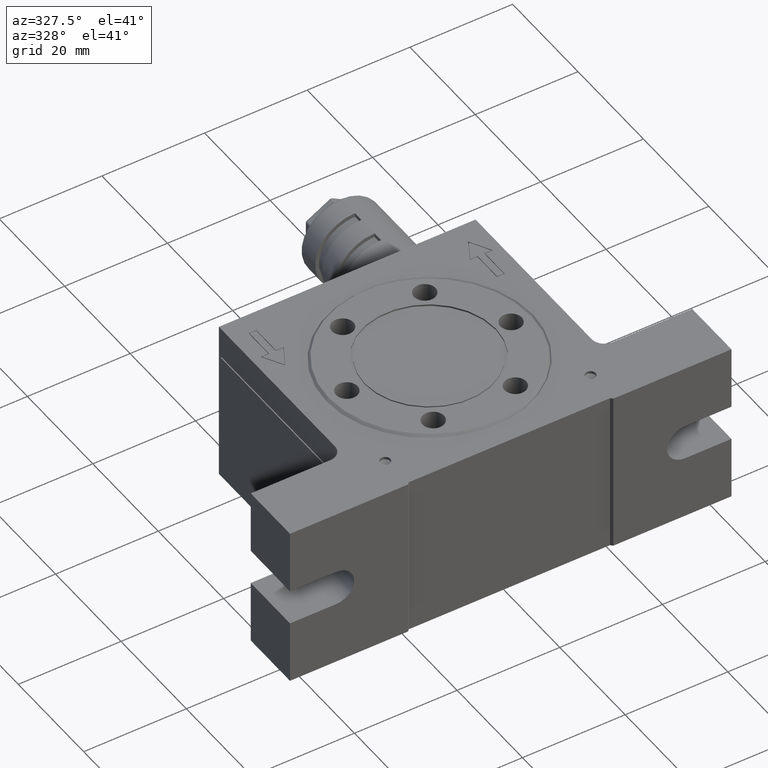
[diagram: clean part render]
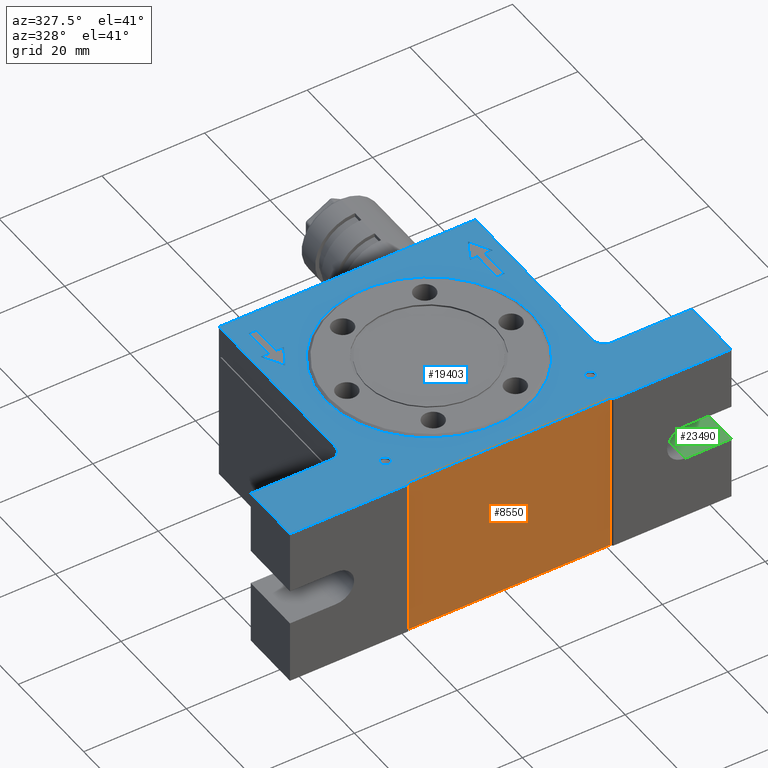
[diagram: same view with three faces highlighted in distinct colors, each labeled with its STEP entity id]
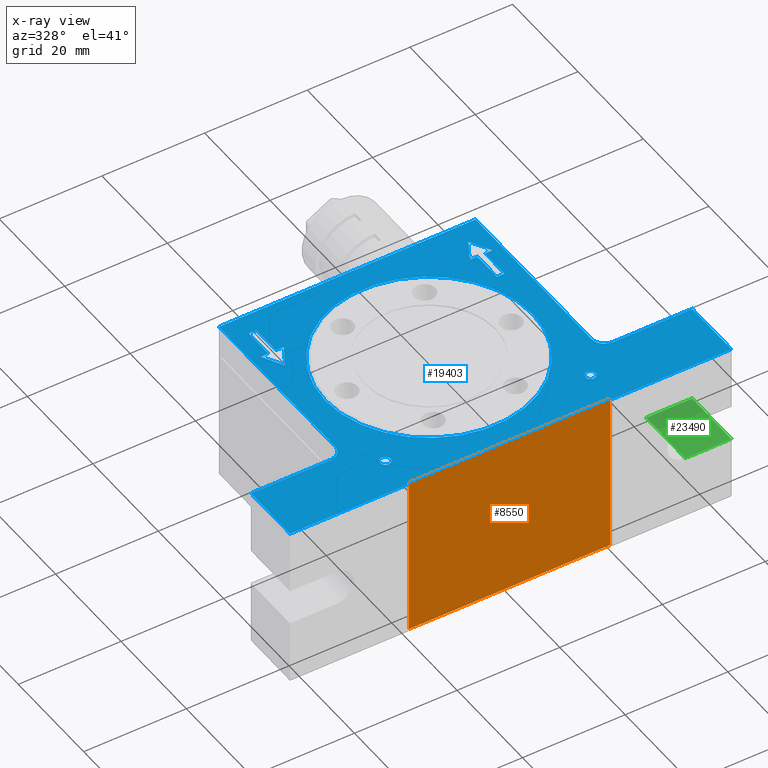
[diagram: x-ray of the same camera — body ghosted, the three highlighted faces saturated]
A machine part, auxiliary view with three faces highlighted in distinct colors.
The next image is the same camera in x-ray (body ghosted, the three faces saturated) — at least one of them is partly hidden behind the body in this view.
Their STEP definitions:

[orange] entity #8550 — the highlighted planar face has unit normal (-0, 1, 0).
#545 = DIRECTION ( 'NONE',  ( -1.000000000000000000, -8.673617379884035500E-017, 0.0000000000000000000 ) ) ;
#841 = LINE ( 'NONE', #10429, #13052 ) ;
#1231 = CARTESIAN_POINT ( 'NONE',  ( -19.99999999999998200, -24.60000000000000100, -16.00000000000000000 ) ) ;
#2549 = EDGE_CURVE ( 'NONE', #21098, #25419, #24283, .T. ) ;
#2736 = ORIENTED_EDGE ( 'NONE', *, *, #19955, .F. ) ;
#2906 = LINE ( 'NONE', #1231, #6371 ) ;
#3129 = DIRECTION ( 'NONE',  ( 0.0000000000000000000, 0.0000000000000000000, -1.000000000000000000 ) ) ;
#3889 = EDGE_LOOP ( 'NONE', ( #2736, #18816, #10448, #10238 ) ) ;
#6371 = VECTOR ( 'NONE', #13377, 1000.000000000000000 ) ;
#6503 = VERTEX_POINT ( 'NONE', #14291 ) ;
#6505 = PLANE ( 'NONE',  #21168 ) ;
#8550 = ADVANCED_FACE ( 'NONE', ( #9614 ), #6505, .F. ) ;
#8590 = EDGE_CURVE ( 'NONE', #6503, #21098, #841, .T. ) ;
#9108 = VERTEX_POINT ( 'NONE', #18602 ) ;
#9525 = CARTESIAN_POINT ( 'NONE',  ( -19.99999999999998200, -24.60000000000000100, 16.00000000000000000 ) ) ;
#9614 = FACE_OUTER_BOUND ( 'NONE', #3889, .T. ) ;
#10193 = VECTOR ( 'NONE', #23522, 1000.000000000000000 ) ;
#10238 = ORIENTED_EDGE ( 'NONE', *, *, #20439, .T. ) ;
#10429 = CARTESIAN_POINT ( 'NONE',  ( 19.60000000000000500, -24.59999999999999800, 16.00000000000000000 ) ) ;
#10448 = ORIENTED_EDGE ( 'NONE', *, *, #2549, .T. ) ;
#11089 = CARTESIAN_POINT ( 'NONE',  ( -19.59999999999998700, -24.60000000000000100, -16.00000000000000000 ) ) ;
#12367 = DIRECTION ( 'NONE',  ( 0.0000000000000000000, 0.0000000000000000000, 1.000000000000000000 ) ) ;
#12890 = LINE ( 'NONE', #11089, #17564 ) ;
#13052 = VECTOR ( 'NONE', #12367, 1000.000000000000000 ) ;
#13377 = DIRECTION ( 'NONE',  ( -1.000000000000000000, -8.673617379884035500E-017, -0.0000000000000000000 ) ) ;
#14229 = DIRECTION ( 'NONE',  ( -8.673617379884035500E-017, 1.000000000000000000, 0.0000000000000000000 ) ) ;
#14291 = CARTESIAN_POINT ( 'NONE',  ( 19.60000000000000500, -24.59999999999999800, -16.00000000000000000 ) ) ;
#17564 = VECTOR ( 'NONE', #3129, 1000.000000000000000 ) ;
#18475 = CARTESIAN_POINT ( 'NONE',  ( -19.99999999999998200, -24.60000000000000100, -16.00000000000000000 ) ) ;
#18602 = CARTESIAN_POINT ( 'NONE',  ( -19.59999999999998700, -24.60000000000000100, -16.00000000000000000 ) ) ;
#18816 = ORIENTED_EDGE ( 'NONE', *, *, #8590, .T. ) ;
#19955 = EDGE_CURVE ( 'NONE', #6503, #9108, #2906, .T. ) ;
#20439 = EDGE_CURVE ( 'NONE', #25419, #9108, #12890, .T. ) ;
#21098 = VERTEX_POINT ( 'NONE', #21456 ) ;
#21168 = AXIS2_PLACEMENT_3D ( 'NONE', #18475, #14229, #545 ) ;
#21456 = CARTESIAN_POINT ( 'NONE',  ( 19.60000000000000500, -24.59999999999999800, 16.00000000000000000 ) ) ;
#23522 = DIRECTION ( 'NONE',  ( -1.000000000000000000, -8.673617379884035500E-017, -0.0000000000000000000 ) ) ;
#23801 = CARTESIAN_POINT ( 'NONE',  ( -19.59999999999998700, -24.60000000000000100, 16.00000000000000000 ) ) ;
#24283 = LINE ( 'NONE', #9525, #10193 ) ;
#25419 = VERTEX_POINT ( 'NONE', #23801 ) ;

[blue] entity #19403 — the highlighted planar face has unit normal (0, 0, -1).
#56 = EDGE_CURVE ( 'NONE', #15762, #9600, #2592, .T. ) ;
#63 = VERTEX_POINT ( 'NONE', #6309 ) ;
#68 = VECTOR ( 'NONE', #10627, 1000.000000000000000 ) ;
#97 = CARTESIAN_POINT ( 'NONE',  ( -20.24999999999998200, 15.00000000000000500, 16.00000000000000000 ) ) ;
#98 = CARTESIAN_POINT ( 'NONE',  ( -19.99999999999998200, -25.00000000000000000, 16.00000000000000000 ) ) ;
#110 = ORIENTED_EDGE ( 'NONE', *, *, #7094, .F. ) ;
#132 = DIRECTION ( 'NONE',  ( -5.782411586589356700E-016, -1.000000000000000000, 0.0000000000000000000 ) ) ;
#145 = FACE_BOUND ( 'NONE', #3710, .T. ) ;
#189 = EDGE_CURVE ( 'NONE', #25401, #14477, #7932, .T. ) ;
#199 = VECTOR ( 'NONE', #15430, 1000.000000000000000 ) ;
#201 = CARTESIAN_POINT ( 'NONE',  ( -20.99999999999998600, 11.00000000000000700, 16.00000000000000000 ) ) ;
#412 = EDGE_CURVE ( 'NONE', #17796, #25401, #6015, .T. ) ;
#508 = ORIENTED_EDGE ( 'NONE', *, *, #14870, .F. ) ;
#771 = CARTESIAN_POINT ( 'NONE',  ( 20.00000000000001800, -24.99999999999999600, 16.00000000000000000 ) ) ;
#806 = ORIENTED_EDGE ( 'NONE', *, *, #22790, .F. ) ;
#830 = VECTOR ( 'NONE', #24873, 1000.000000000000000 ) ;
#875 = EDGE_CURVE ( 'NONE', #2945, #3043, #2834, .T. ) ;
#896 = EDGE_CURVE ( 'NONE', #13149, #13940, #23517, .T. ) ;
#910 = EDGE_LOOP ( 'NONE', ( #110, #17395 ) ) ;
#946 = VERTEX_POINT ( 'NONE', #98 ) ;
#1190 = VERTEX_POINT ( 'NONE', #5411 ) ;
#1242 = VERTEX_POINT ( 'NONE', #23428 ) ;
#1325 = VECTOR ( 'NONE', #13461, 1000.000000000000000 ) ;
#1435 = VECTOR ( 'NONE', #132, 1000.000000000000000 ) ;
#1453 = CARTESIAN_POINT ( 'NONE',  ( -21.74999999999999300, 15.00000000000000500, 16.00000000000000000 ) ) ;
#1824 = DIRECTION ( 'NONE',  ( 0.0000000000000000000, -1.000000000000000000, 0.0000000000000000000 ) ) ;
#1930 = EDGE_CURVE ( 'NONE', #18564, #14482, #10908, .T. ) ;
#1996 = CARTESIAN_POINT ( 'NONE',  ( 20.25000000000001400, 16.99999999999999600, 16.00000000000000000 ) ) ;
#2020 = VECTOR ( 'NONE', #18579, 1000.000000000000000 ) ;
#2116 = DIRECTION ( 'NONE',  ( -1.000000000000000000, 0.0000000000000000000, 0.0000000000000000000 ) ) ;
#2276 = DIRECTION ( 'NONE',  ( 0.4902612396325589100, 0.8715755371245493800, 0.0000000000000000000 ) ) ;
#2367 = CARTESIAN_POINT ( 'NONE',  ( 21.75000000000001800, 10.99999999999999800, 16.00000000000000000 ) ) ;
#2536 = VECTOR ( 'NONE', #20684, 1000.000000000000000 ) ;
#2549 = EDGE_CURVE ( 'NONE', #21098, #25419, #24283, .T. ) ;
#2588 = ORIENTED_EDGE ( 'NONE', *, *, #20489, .F. ) ;
#2592 = LINE ( 'NONE', #13949, #22948 ) ;
#2623 = CARTESIAN_POINT ( 'NONE',  ( -27.49999999999998600, -13.00000000000000500, 16.00000000000000000 ) ) ;
#2682 = VERTEX_POINT ( 'NONE', #24205 ) ;
#2830 = CIRCLE ( 'NONE', #21472, 20.19000000000000100 ) ;
#2834 = LINE ( 'NONE', #4735, #2536 ) ;
#2862 = DIRECTION ( 'NONE',  ( -1.000000000000000000, 0.0000000000000000000, 0.0000000000000000000 ) ) ;
#2928 = CIRCLE ( 'NONE', #21824, 2.499999999999998700 ) ;
#2937 = DIRECTION ( 'NONE',  ( -1.000000000000000000, 0.0000000000000000000, 0.0000000000000000000 ) ) ;
#2945 = VERTEX_POINT ( 'NONE', #7633 ) ;
#2978 = CARTESIAN_POINT ( 'NONE',  ( -23.24999999999998600, 15.00000000000000500, 16.00000000000000000 ) ) ;
#3018 = CARTESIAN_POINT ( 'NONE',  ( -20.99999999999999300, -18.00000000000000400, 16.00000000000000000 ) ) ;
#3043 = VERTEX_POINT ( 'NONE', #18635 ) ;
#3139 = ORIENTED_EDGE ( 'NONE', *, *, #21858, .T. ) ;
#3235 = VECTOR ( 'NONE', #15649, 1000.000000000000000 ) ;
#3255 = CARTESIAN_POINT ( 'NONE',  ( -23.24999999999998600, 15.00000000000000500, 16.00000000000000000 ) ) ;
#3262 = VECTOR ( 'NONE', #16569, 1000.000000000000000 ) ;
#3295 = ORIENTED_EDGE ( 'NONE', *, *, #6910, .T. ) ;
#3460 = EDGE_LOOP ( 'NONE', ( #13782, #15294, #23070, #508, #16185, #20585, #15202 ) ) ;
#3470 = ORIENTED_EDGE ( 'NONE', *, *, #896, .F. ) ;
#3569 = DIRECTION ( 'NONE',  ( -0.0000000000000000000, -0.0000000000000000000, 1.000000000000000000 ) ) ;
#3686 = VECTOR ( 'NONE', #25464, 1000.000000000000000 ) ;
#3710 = EDGE_LOOP ( 'NONE', ( #12734, #806 ) ) ;
#4130 = ORIENTED_EDGE ( 'NONE', *, *, #14035, .T. ) ;
#4214 = FACE_OUTER_BOUND ( 'NONE', #10989, .T. ) ;
#4246 = ORIENTED_EDGE ( 'NONE', *, *, #2549, .F. ) ;
#4275 = ORIENTED_EDGE ( 'NONE', *, *, #19640, .F. ) ;
#4647 = DIRECTION ( 'NONE',  ( -0.4902612396325587400, -0.8715755371245494900, 0.0000000000000000000 ) ) ;
#4705 = LINE ( 'NONE', #13921, #19433 ) ;
#4735 = CARTESIAN_POINT ( 'NONE',  ( -42.99999999999998600, 25.00000000000000000, 16.00000000000000000 ) ) ;
#4743 = CARTESIAN_POINT ( 'NONE',  ( -19.99999999999999600, -18.00000000000000400, 16.00000000000000000 ) ) ;
#4825 = CARTESIAN_POINT ( 'NONE',  ( 21.00000000000001400, 20.99999999999999600, 16.00000000000000000 ) ) ;
#4936 = EDGE_LOOP ( 'NONE', ( #21880, #10880, #3470, #24516, #17919, #15688, #20775 ) ) ;
#4960 = ORIENTED_EDGE ( 'NONE', *, *, #1930, .F. ) ;
#4973 = VERTEX_POINT ( 'NONE', #3018 ) ;
#5132 = VECTOR ( 'NONE', #20127, 1000.000000000000000 ) ;
#5261 = EDGE_CURVE ( 'NONE', #946, #25419, #21870, .T. ) ;
#5350 = CIRCLE ( 'NONE', #11924, 2.499999999999998700 ) ;
#5369 = LINE ( 'NONE', #6800, #23534 ) ;
#5372 = DIRECTION ( 'NONE',  ( 1.000000000000000000, 0.0000000000000000000, 0.0000000000000000000 ) ) ;
#5411 = CARTESIAN_POINT ( 'NONE',  ( 20.25000000000001400, 16.99999999999999600, 16.00000000000000000 ) ) ;
#5465 = FACE_BOUND ( 'NONE', #3460, .T. ) ;
#5515 = LINE ( 'NONE', #13671, #199 ) ;
#5646 = ORIENTED_EDGE ( 'NONE', *, *, #5261, .T. ) ;
#5677 = EDGE_CURVE ( 'NONE', #25134, #946, #23095, .T. ) ;
#5678 = DIRECTION ( 'NONE',  ( 1.000000000000000000, 0.0000000000000000000, 0.0000000000000000000 ) ) ;
#5972 = CIRCLE ( 'NONE', #12592, 0.9999999999999974500 ) ;
#6015 = LINE ( 'NONE', #14517, #68 ) ;
#6214 = CARTESIAN_POINT ( 'NONE',  ( 43.00000000000000700, -13.00000000000000500, 16.00000000000000000 ) ) ;
#6301 = CARTESIAN_POINT ( 'NONE',  ( 21.00000000000000700, 20.99999999999999600, 16.00000000000000000 ) ) ;
#6309 = CARTESIAN_POINT ( 'NONE',  ( -20.19000000000000100, 2.472561887478506400E-015, 16.00000000000000000 ) ) ;
#6461 = CARTESIAN_POINT ( 'NONE',  ( 21.75000000000001400, 16.99999999999999600, 16.00000000000000000 ) ) ;
#6776 = ORIENTED_EDGE ( 'NONE', *, *, #875, .T. ) ;
#6800 = CARTESIAN_POINT ( 'NONE',  ( -24.99999999999998600, 25.00000000000000000, 16.00000000000000000 ) ) ;
#6818 = LINE ( 'NONE', #2978, #3686 ) ;
#6840 = DIRECTION ( 'NONE',  ( 1.000000000000000000, -0.0000000000000000000, -0.0000000000000000000 ) ) ;
#6910 = EDGE_CURVE ( 'NONE', #19418, #2682, #4705, .T. ) ;
#7083 = CARTESIAN_POINT ( 'NONE',  ( -42.99999999999998600, -25.00000000000000000, 16.00000000000000000 ) ) ;
#7094 = EDGE_CURVE ( 'NONE', #9505, #14316, #5972, .T. ) ;
#7118 = VECTOR ( 'NONE', #20288, 1000.000000000000000 ) ;
#7282 = VECTOR ( 'NONE', #8572, 1000.000000000000000 ) ;
#7380 = LINE ( 'NONE', #8106, #1435 ) ;
#7633 = CARTESIAN_POINT ( 'NONE',  ( 25.00000000000001400, 24.99999999999999600, 16.00000000000000000 ) ) ;
#7906 = ORIENTED_EDGE ( 'NONE', *, *, #9874, .T. ) ;
#7932 = LINE ( 'NONE', #22458, #7282 ) ;
#8106 = CARTESIAN_POINT ( 'NONE',  ( -21.74999999999998900, 21.00000000000000400, 16.00000000000000000 ) ) ;
#8273 = AXIS2_PLACEMENT_3D ( 'NONE', #25438, #3569, #9519 ) ;
#8359 = CARTESIAN_POINT ( 'NONE',  ( -36.50000000000107300, 31.49999999999913300, 16.00000000000000000 ) ) ;
#8371 = LINE ( 'NONE', #24185, #14877 ) ;
#8534 = EDGE_CURVE ( 'NONE', #14892, #11742, #8371, .T. ) ;
#8572 = DIRECTION ( 'NONE',  ( -1.000000000000000000, -0.0000000000000000000, 0.0000000000000000000 ) ) ;
#8634 = DIRECTION ( 'NONE',  ( 1.000000000000000000, 0.0000000000000000000, 0.0000000000000000000 ) ) ;
#8664 = PLANE ( 'NONE',  #14426 ) ;
#8707 = CARTESIAN_POINT ( 'NONE',  ( -24.99999999999998600, -10.50000000000000200, 16.00000000000000000 ) ) ;
#8845 = DIRECTION ( 'NONE',  ( 0.0000000000000000000, 0.0000000000000000000, -1.000000000000000000 ) ) ;
#8983 = ORIENTED_EDGE ( 'NONE', *, *, #18815, .T. ) ;
#9052 = LINE ( 'NONE', #24947, #24388 ) ;
#9505 = VERTEX_POINT ( 'NONE', #10286 ) ;
#9519 = DIRECTION ( 'NONE',  ( 1.000000000000000000, 0.0000000000000000000, 0.0000000000000000000 ) ) ;
#9525 = CARTESIAN_POINT ( 'NONE',  ( -19.99999999999998200, -24.60000000000000100, 16.00000000000000000 ) ) ;
#9554 = CIRCLE ( 'NONE', #8273, 0.9999999999999974500 ) ;
#9600 = VERTEX_POINT ( 'NONE', #24543 ) ;
#9874 = EDGE_CURVE ( 'NONE', #16156, #11742, #2928, .T. ) ;
#9940 = CARTESIAN_POINT ( 'NONE',  ( -42.99999999999998600, -13.00000000000000500, 16.00000000000000000 ) ) ;
#10049 = CARTESIAN_POINT ( 'NONE',  ( -20.24999999999998600, 21.00000000000000400, 16.00000000000000000 ) ) ;
#10193 = VECTOR ( 'NONE', #23522, 1000.000000000000000 ) ;
#10286 = CARTESIAN_POINT ( 'NONE',  ( 21.00000000000000000, -18.00000000000000000, 16.00000000000000000 ) ) ;
#10357 = EDGE_CURVE ( 'NONE', #16685, #15762, #12955, .T. ) ;
#10464 = VECTOR ( 'NONE', #2276, 1000.000000000000000 ) ;
#10546 = CARTESIAN_POINT ( 'NONE',  ( 25.00000000000001400, 24.99999999999999600, 16.00000000000000000 ) ) ;
#10627 = DIRECTION ( 'NONE',  ( -5.782411586589356700E-016, 1.000000000000000000, 0.0000000000000000000 ) ) ;
#10691 = VECTOR ( 'NONE', #1824, 1000.000000000000000 ) ;
#10866 = CARTESIAN_POINT ( 'NONE',  ( 43.00000000000000700, -13.00000000000000500, 16.00000000000000000 ) ) ;
#10879 = DIRECTION ( 'NONE',  ( -0.0000000000000000000, -0.0000000000000000000, 1.000000000000000000 ) ) ;
#10880 = ORIENTED_EDGE ( 'NONE', *, *, #18341, .F. ) ;
#10899 = LINE ( 'NONE', #18589, #14920 ) ;
#10908 = LINE ( 'NONE', #10866, #21543 ) ;
#10989 = EDGE_LOOP ( 'NONE', ( #18755, #5646, #4246, #8983, #3295, #4130, #4960, #14054, #4275, #6776, #2588, #7906, #18650, #22608 ) ) ;
#11015 = DIRECTION ( 'NONE',  ( 0.0000000000000000000, 0.0000000000000000000, -1.000000000000000000 ) ) ;
#11202 = EDGE_CURVE ( 'NONE', #9600, #13149, #14507, .T. ) ;
#11631 = EDGE_CURVE ( 'NONE', #20625, #18998, #23285, .T. ) ;
#11727 = LINE ( 'NONE', #17751, #10464 ) ;
#11742 = VERTEX_POINT ( 'NONE', #2623 ) ;
#11753 = CARTESIAN_POINT ( 'NONE',  ( -27.49999999999998600, -10.50000000000000200, 16.00000000000000000 ) ) ;
#11924 = AXIS2_PLACEMENT_3D ( 'NONE', #22968, #20707, #2937 ) ;
#12241 = CARTESIAN_POINT ( 'NONE',  ( 20.25000000000001400, 10.99999999999999800, 16.00000000000000000 ) ) ;
#12592 = AXIS2_PLACEMENT_3D ( 'NONE', #19265, #13569, #5372 ) ;
#12734 = ORIENTED_EDGE ( 'NONE', *, *, #23008, .F. ) ;
#12735 = LINE ( 'NONE', #8359, #830 ) ;
#12765 = CARTESIAN_POINT ( 'NONE',  ( -42.99999999999998600, 25.00000000000000000, 16.00000000000000000 ) ) ;
#12902 = DIRECTION ( 'NONE',  ( 1.000000000000000000, 0.0000000000000000000, 0.0000000000000000000 ) ) ;
#12923 = AXIS2_PLACEMENT_3D ( 'NONE', #4743, #10879, #12902 ) ;
#12954 = EDGE_CURVE ( 'NONE', #1190, #14524, #24754, .T. ) ;
#12955 = LINE ( 'NONE', #13620, #3235 ) ;
#13024 = DIRECTION ( 'NONE',  ( -0.0000000000000000000, 1.000000000000000000, -0.0000000000000000000 ) ) ;
#13149 = VERTEX_POINT ( 'NONE', #6301 ) ;
#13461 = DIRECTION ( 'NONE',  ( -0.0000000000000000000, -1.000000000000000000, -0.0000000000000000000 ) ) ;
#13569 = DIRECTION ( 'NONE',  ( -0.0000000000000000000, -0.0000000000000000000, 1.000000000000000000 ) ) ;
#13620 = CARTESIAN_POINT ( 'NONE',  ( 21.75000000000001800, 10.99999999999999800, 16.00000000000000000 ) ) ;
#13671 = CARTESIAN_POINT ( 'NONE',  ( 20.25000000000001400, 10.99999999999999800, 16.00000000000000000 ) ) ;
#13683 = VERTEX_POINT ( 'NONE', #20588 ) ;
#13782 = ORIENTED_EDGE ( 'NONE', *, *, #19235, .F. ) ;
#13808 = DIRECTION ( 'NONE',  ( -0.0000000000000000000, -0.0000000000000000000, 1.000000000000000000 ) ) ;
#13921 = CARTESIAN_POINT ( 'NONE',  ( -42.99999999999998600, -25.00000000000000000, 16.00000000000000000 ) ) ;
#13940 = VERTEX_POINT ( 'NONE', #22156 ) ;
#13949 = CARTESIAN_POINT ( 'NONE',  ( 21.75000000000001400, 16.99999999999999600, 16.00000000000000000 ) ) ;
#14035 = EDGE_CURVE ( 'NONE', #2682, #14482, #9052, .T. ) ;
#14054 = ORIENTED_EDGE ( 'NONE', *, *, #17212, .T. ) ;
#14056 = DIRECTION ( 'NONE',  ( 0.0000000000000000000, 0.0000000000000000000, -1.000000000000000000 ) ) ;
#14059 = CARTESIAN_POINT ( 'NONE',  ( -21.74999999999999300, 15.00000000000000500, 16.00000000000000000 ) ) ;
#14183 = CARTESIAN_POINT ( 'NONE',  ( -6.499999999999984900, -11.49999999999999600, 16.00000000000000000 ) ) ;
#14206 = EDGE_CURVE ( 'NONE', #18998, #24587, #6818, .T. ) ;
#14218 = CARTESIAN_POINT ( 'NONE',  ( -19.00000000000000000, -18.00000000000000400, 16.00000000000000000 ) ) ;
#14316 = VERTEX_POINT ( 'NONE', #23354 ) ;
#14367 = AXIS2_PLACEMENT_3D ( 'NONE', #18784, #11015, #2862 ) ;
#14381 = CARTESIAN_POINT ( 'NONE',  ( -42.99999999999998600, -25.00000000000000000, 16.00000000000000000 ) ) ;
#14426 = AXIS2_PLACEMENT_3D ( 'NONE', #12765, #8845, #14733 ) ;
#14477 = VERTEX_POINT ( 'NONE', #24407 ) ;
#14482 = VERTEX_POINT ( 'NONE', #6214 ) ;
#14507 = LINE ( 'NONE', #16727, #2020 ) ;
#14517 = CARTESIAN_POINT ( 'NONE',  ( -20.24999999999998600, 21.00000000000000400, 16.00000000000000000 ) ) ;
#14524 = VERTEX_POINT ( 'NONE', #12241 ) ;
#14648 = CARTESIAN_POINT ( 'NONE',  ( 25.00000000000001400, -10.50000000000000500, 16.00000000000000000 ) ) ;
#14733 = DIRECTION ( 'NONE',  ( -1.000000000000000000, 0.0000000000000000000, -0.0000000000000000000 ) ) ;
#14870 = EDGE_CURVE ( 'NONE', #14477, #20625, #7380, .T. ) ;
#14877 = VECTOR ( 'NONE', #20232, 1000.000000000000000 ) ;
#14892 = VERTEX_POINT ( 'NONE', #9940 ) ;
#14920 = VECTOR ( 'NONE', #8634, 1000.000000000000000 ) ;
#15202 = ORIENTED_EDGE ( 'NONE', *, *, #17527, .F. ) ;
#15225 = CARTESIAN_POINT ( 'NONE',  ( 27.50000000000001400, -13.00000000000000500, 16.00000000000000000 ) ) ;
#15229 = VERTEX_POINT ( 'NONE', #14648 ) ;
#15294 = ORIENTED_EDGE ( 'NONE', *, *, #14206, .F. ) ;
#15430 = DIRECTION ( 'NONE',  ( 1.000000000000000000, 0.0000000000000000000, 0.0000000000000000000 ) ) ;
#15464 = FACE_BOUND ( 'NONE', #910, .T. ) ;
#15490 = CARTESIAN_POINT ( 'NONE',  ( -19.99999999999999600, -18.00000000000000400, 16.00000000000000000 ) ) ;
#15649 = DIRECTION ( 'NONE',  ( -5.782411586589356700E-016, 1.000000000000000000, 0.0000000000000000000 ) ) ;
#15688 = ORIENTED_EDGE ( 'NONE', *, *, #10357, .F. ) ;
#15760 = DIRECTION ( 'NONE',  ( 1.000000000000000000, 0.0000000000000000000, 0.0000000000000000000 ) ) ;
#15762 = VERTEX_POINT ( 'NONE', #6461 ) ;
#15778 = DIRECTION ( 'NONE',  ( -1.000000000000000000, 0.0000000000000000000, 0.0000000000000000000 ) ) ;
#15879 = CIRCLE ( 'NONE', #14367, 20.19000000000000100 ) ;
#16153 = CIRCLE ( 'NONE', #17430, 0.9999999999999974500 ) ;
#16156 = VERTEX_POINT ( 'NONE', #8707 ) ;
#16185 = ORIENTED_EDGE ( 'NONE', *, *, #189, .F. ) ;
#16238 = DIRECTION ( 'NONE',  ( 0.7071067811865474600, 0.7071067811865474600, -0.0000000000000000000 ) ) ;
#16569 = DIRECTION ( 'NONE',  ( 0.0000000000000000000, -1.000000000000000000, 0.0000000000000000000 ) ) ;
#16685 = VERTEX_POINT ( 'NONE', #2367 ) ;
#16727 = CARTESIAN_POINT ( 'NONE',  ( 23.25000000000001400, 16.99999999999999600, 16.00000000000000000 ) ) ;
#17212 = EDGE_CURVE ( 'NONE', #18564, #15229, #5350, .T. ) ;
#17362 = FACE_BOUND ( 'NONE', #22354, .T. ) ;
#17395 = ORIENTED_EDGE ( 'NONE', *, *, #23816, .F. ) ;
#17430 = AXIS2_PLACEMENT_3D ( 'NONE', #15490, #13808, #15760 ) ;
#17481 = EDGE_CURVE ( 'NONE', #13683, #63, #2830, .T. ) ;
#17527 = EDGE_CURVE ( 'NONE', #1242, #17796, #24442, .T. ) ;
#17751 = CARTESIAN_POINT ( 'NONE',  ( -20.99999999999998600, 11.00000000000000700, 16.00000000000000000 ) ) ;
#17786 = CARTESIAN_POINT ( 'NONE',  ( 0.0000000000000000000, 0.0000000000000000000, 16.00000000000000000 ) ) ;
#17796 = VERTEX_POINT ( 'NONE', #97 ) ;
#17919 = ORIENTED_EDGE ( 'NONE', *, *, #56, .F. ) ;
#18181 = VECTOR ( 'NONE', #4647, 1000.000000000000000 ) ;
#18296 = ORIENTED_EDGE ( 'NONE', *, *, #17481, .T. ) ;
#18341 = EDGE_CURVE ( 'NONE', #13940, #1190, #10899, .T. ) ;
#18564 = VERTEX_POINT ( 'NONE', #15225 ) ;
#18579 = DIRECTION ( 'NONE',  ( -0.4902612396325587400, 0.8715755371245494900, 0.0000000000000000000 ) ) ;
#18589 = CARTESIAN_POINT ( 'NONE',  ( 18.75000000000001800, 16.99999999999999600, 16.00000000000000000 ) ) ;
#18635 = CARTESIAN_POINT ( 'NONE',  ( -24.99999999999998600, 25.00000000000000000, 16.00000000000000000 ) ) ;
#18650 = ORIENTED_EDGE ( 'NONE', *, *, #8534, .F. ) ;
#18755 = ORIENTED_EDGE ( 'NONE', *, *, #5677, .T. ) ;
#18784 = CARTESIAN_POINT ( 'NONE',  ( 0.0000000000000000000, 0.0000000000000000000, 16.00000000000000000 ) ) ;
#18815 = EDGE_CURVE ( 'NONE', #21098, #19418, #12735, .T. ) ;
#18887 = DIRECTION ( 'NONE',  ( 0.0000000000000000000, 1.000000000000000000, 0.0000000000000000000 ) ) ;
#18998 = VERTEX_POINT ( 'NONE', #3255 ) ;
#19094 = VECTOR ( 'NONE', #25601, 1000.000000000000000 ) ;
#19213 = LINE ( 'NONE', #10546, #3262 ) ;
#19235 = EDGE_CURVE ( 'NONE', #24587, #1242, #11727, .T. ) ;
#19265 = CARTESIAN_POINT ( 'NONE',  ( 20.00000000000000400, -18.00000000000000000, 16.00000000000000000 ) ) ;
#19403 = ADVANCED_FACE ( 'NONE', ( #17362, #21426, #5465, #145, #15464, #4214 ), #8664, .F. ) ;
#19418 = VERTEX_POINT ( 'NONE', #771 ) ;
#19433 = VECTOR ( 'NONE', #20076, 1000.000000000000000 ) ;
#19640 = EDGE_CURVE ( 'NONE', #2945, #15229, #19213, .T. ) ;
#19723 = CARTESIAN_POINT ( 'NONE',  ( -18.74999999999998900, 15.00000000000000500, 16.00000000000000000 ) ) ;
#19975 = VECTOR ( 'NONE', #16238, 1000.000000000000100 ) ;
#19978 = EDGE_CURVE ( 'NONE', #14892, #25134, #21060, .T. ) ;
#20076 = DIRECTION ( 'NONE',  ( 1.000000000000000000, 0.0000000000000000000, 0.0000000000000000000 ) ) ;
#20127 = DIRECTION ( 'NONE',  ( -1.000000000000000000, 0.0000000000000000000, 0.0000000000000000000 ) ) ;
#20232 = DIRECTION ( 'NONE',  ( 1.000000000000000000, 0.0000000000000000000, 0.0000000000000000000 ) ) ;
#20288 = DIRECTION ( 'NONE',  ( 1.000000000000000000, 0.0000000000000000000, 0.0000000000000000000 ) ) ;
#20489 = EDGE_CURVE ( 'NONE', #16156, #3043, #5369, .T. ) ;
#20585 = ORIENTED_EDGE ( 'NONE', *, *, #412, .F. ) ;
#20588 = CARTESIAN_POINT ( 'NONE',  ( 20.19000000000000100, 0.0000000000000000000, 16.00000000000000000 ) ) ;
#20625 = VERTEX_POINT ( 'NONE', #1453 ) ;
#20684 = DIRECTION ( 'NONE',  ( -1.000000000000000000, -0.0000000000000000000, -0.0000000000000000000 ) ) ;
#20707 = DIRECTION ( 'NONE',  ( 0.0000000000000000000, 0.0000000000000000000, -1.000000000000000000 ) ) ;
#20775 = ORIENTED_EDGE ( 'NONE', *, *, #22544, .F. ) ;
#21060 = LINE ( 'NONE', #7083, #1325 ) ;
#21098 = VERTEX_POINT ( 'NONE', #21456 ) ;
#21426 = FACE_BOUND ( 'NONE', #4936, .T. ) ;
#21456 = CARTESIAN_POINT ( 'NONE',  ( 19.60000000000000500, -24.59999999999999800, 16.00000000000000000 ) ) ;
#21472 = AXIS2_PLACEMENT_3D ( 'NONE', #17786, #21644, #15778 ) ;
#21543 = VECTOR ( 'NONE', #6840, 1000.000000000000000 ) ;
#21644 = DIRECTION ( 'NONE',  ( 0.0000000000000000000, 0.0000000000000000000, -1.000000000000000000 ) ) ;
#21824 = AXIS2_PLACEMENT_3D ( 'NONE', #11753, #14056, #2116 ) ;
#21858 = EDGE_CURVE ( 'NONE', #63, #13683, #15879, .T. ) ;
#21870 = LINE ( 'NONE', #14183, #19975 ) ;
#21880 = ORIENTED_EDGE ( 'NONE', *, *, #12954, .F. ) ;
#22139 = CIRCLE ( 'NONE', #12923, 0.9999999999999974500 ) ;
#22156 = CARTESIAN_POINT ( 'NONE',  ( 18.75000000000001800, 16.99999999999999600, 16.00000000000000000 ) ) ;
#22354 = EDGE_LOOP ( 'NONE', ( #18296, #3139 ) ) ;
#22458 = CARTESIAN_POINT ( 'NONE',  ( -21.74999999999998900, 21.00000000000000400, 16.00000000000000000 ) ) ;
#22544 = EDGE_CURVE ( 'NONE', #14524, #16685, #5515, .T. ) ;
#22608 = ORIENTED_EDGE ( 'NONE', *, *, #19978, .T. ) ;
#22790 = EDGE_CURVE ( 'NONE', #4973, #24984, #22139, .T. ) ;
#22948 = VECTOR ( 'NONE', #5678, 1000.000000000000000 ) ;
#22968 = CARTESIAN_POINT ( 'NONE',  ( 27.50000000000001400, -10.50000000000000400, 16.00000000000000000 ) ) ;
#23008 = EDGE_CURVE ( 'NONE', #24984, #4973, #16153, .T. ) ;
#23070 = ORIENTED_EDGE ( 'NONE', *, *, #11631, .F. ) ;
#23095 = LINE ( 'NONE', #14381, #7118 ) ;
#23285 = LINE ( 'NONE', #14059, #5132 ) ;
#23354 = CARTESIAN_POINT ( 'NONE',  ( 19.00000000000000700, -18.00000000000000000, 16.00000000000000000 ) ) ;
#23428 = CARTESIAN_POINT ( 'NONE',  ( -18.74999999999998900, 15.00000000000000500, 16.00000000000000000 ) ) ;
#23517 = LINE ( 'NONE', #4825, #18181 ) ;
#23522 = DIRECTION ( 'NONE',  ( -1.000000000000000000, -8.673617379884035500E-017, -0.0000000000000000000 ) ) ;
#23534 = VECTOR ( 'NONE', #13024, 1000.000000000000000 ) ;
#23801 = CARTESIAN_POINT ( 'NONE',  ( -19.59999999999998700, -24.60000000000000100, 16.00000000000000000 ) ) ;
#23816 = EDGE_CURVE ( 'NONE', #14316, #9505, #9554, .T. ) ;
#24185 = CARTESIAN_POINT ( 'NONE',  ( -42.99999999999998600, -13.00000000000000500, 16.00000000000000000 ) ) ;
#24205 = CARTESIAN_POINT ( 'NONE',  ( 43.00000000000000700, -25.00000000000000000, 16.00000000000000000 ) ) ;
#24283 = LINE ( 'NONE', #9525, #10193 ) ;
#24388 = VECTOR ( 'NONE', #18887, 1000.000000000000000 ) ;
#24407 = CARTESIAN_POINT ( 'NONE',  ( -21.74999999999998900, 21.00000000000000400, 16.00000000000000000 ) ) ;
#24442 = LINE ( 'NONE', #19723, #19094 ) ;
#24506 = CARTESIAN_POINT ( 'NONE',  ( -42.99999999999998600, -25.00000000000000000, 16.00000000000000000 ) ) ;
#24516 = ORIENTED_EDGE ( 'NONE', *, *, #11202, .F. ) ;
#24543 = CARTESIAN_POINT ( 'NONE',  ( 23.25000000000001400, 16.99999999999999600, 16.00000000000000000 ) ) ;
#24587 = VERTEX_POINT ( 'NONE', #201 ) ;
#24754 = LINE ( 'NONE', #1996, #10691 ) ;
#24873 = DIRECTION ( 'NONE',  ( 0.7071067811865597900, -0.7071067811865352500, -0.0000000000000000000 ) ) ;
#24947 = CARTESIAN_POINT ( 'NONE',  ( 43.00000000000000700, -25.00000000000000000, 16.00000000000000000 ) ) ;
#24984 = VERTEX_POINT ( 'NONE', #14218 ) ;
#25134 = VERTEX_POINT ( 'NONE', #24506 ) ;
#25401 = VERTEX_POINT ( 'NONE', #10049 ) ;
#25419 = VERTEX_POINT ( 'NONE', #23801 ) ;
#25438 = CARTESIAN_POINT ( 'NONE',  ( 20.00000000000000400, -18.00000000000000000, 16.00000000000000000 ) ) ;
#25464 = DIRECTION ( 'NONE',  ( 0.4902612396325589100, -0.8715755371245493800, 0.0000000000000000000 ) ) ;
#25601 = DIRECTION ( 'NONE',  ( -1.000000000000000000, 0.0000000000000000000, 0.0000000000000000000 ) ) ;

[green] entity #23490 — the highlighted planar face has unit normal (-0, 0, -1).
#488 = ORIENTED_EDGE ( 'NONE', *, *, #12468, .T. ) ;
#1292 = LINE ( 'NONE', #22194, #15698 ) ;
#3033 = VERTEX_POINT ( 'NONE', #8684 ) ;
#3394 = DIRECTION ( 'NONE',  ( -1.000000000000000000, 0.0000000000000000000, 5.300543954373588800E-016 ) ) ;
#4295 = ORIENTED_EDGE ( 'NONE', *, *, #22019, .F. ) ;
#5956 = PLANE ( 'NONE',  #10089 ) ;
#8374 = CARTESIAN_POINT ( 'NONE',  ( 42.99999999999998600, -13.00000000000000500, -3.500000000000000000 ) ) ;
#8684 = CARTESIAN_POINT ( 'NONE',  ( 43.00000000000000700, -13.00000000000000500, -3.499999999999996000 ) ) ;
#9516 = CARTESIAN_POINT ( 'NONE',  ( 34.00000000000000000, -25.00000000000000000, -3.499999999999995100 ) ) ;
#10089 = AXIS2_PLACEMENT_3D ( 'NONE', #20200, #24247, #18100 ) ;
#10205 = FACE_OUTER_BOUND ( 'NONE', #16824, .T. ) ;
#10338 = ORIENTED_EDGE ( 'NONE', *, *, #20807, .F. ) ;
#10371 = DIRECTION ( 'NONE',  ( -1.000000000000000000, 0.0000000000000000000, 5.300543954373588800E-016 ) ) ;
#10893 = VECTOR ( 'NONE', #3394, 1000.000000000000000 ) ;
#11093 = CARTESIAN_POINT ( 'NONE',  ( 42.99999999999998600, -25.00000000000000000, -3.500000000000000000 ) ) ;
#12468 = EDGE_CURVE ( 'NONE', #19664, #3033, #1292, .T. ) ;
#13663 = ORIENTED_EDGE ( 'NONE', *, *, #15077, .T. ) ;
#14181 = CARTESIAN_POINT ( 'NONE',  ( 42.99999999999998600, -25.00000000000000000, -3.500000000000000000 ) ) ;
#14532 = LINE ( 'NONE', #8374, #22407 ) ;
#15077 = EDGE_CURVE ( 'NONE', #3033, #23653, #14532, .T. ) ;
#15684 = VECTOR ( 'NONE', #16223, 1000.000000000000000 ) ;
#15698 = VECTOR ( 'NONE', #16399, 1000.000000000000000 ) ;
#16223 = DIRECTION ( 'NONE',  ( -0.0000000000000000000, 1.000000000000000000, -0.0000000000000000000 ) ) ;
#16399 = DIRECTION ( 'NONE',  ( -0.0000000000000000000, 1.000000000000000000, -0.0000000000000000000 ) ) ;
#16824 = EDGE_LOOP ( 'NONE', ( #13663, #10338, #4295, #488 ) ) ;
#18100 = DIRECTION ( 'NONE',  ( -1.000000000000000000, 0.0000000000000000000, 5.300543954373588800E-016 ) ) ;
#18449 = CARTESIAN_POINT ( 'NONE',  ( 34.00000000000000000, -13.00000000000000500, -3.499999999999995100 ) ) ;
#19664 = VERTEX_POINT ( 'NONE', #14181 ) ;
#20070 = CARTESIAN_POINT ( 'NONE',  ( 34.00000000000000000, -25.00000000000000000, -3.499999999999995100 ) ) ;
#20200 = CARTESIAN_POINT ( 'NONE',  ( 42.99999999999998600, -25.00000000000000000, -3.500000000000000000 ) ) ;
#20807 = EDGE_CURVE ( 'NONE', #22592, #23653, #23198, .T. ) ;
#21530 = LINE ( 'NONE', #11093, #10893 ) ;
#22019 = EDGE_CURVE ( 'NONE', #19664, #22592, #21530, .T. ) ;
#22194 = CARTESIAN_POINT ( 'NONE',  ( 42.99999999999998600, -25.00000000000000000, -3.500000000000000000 ) ) ;
#22407 = VECTOR ( 'NONE', #10371, 1000.000000000000000 ) ;
#22592 = VERTEX_POINT ( 'NONE', #9516 ) ;
#23198 = LINE ( 'NONE', #20070, #15684 ) ;
#23490 = ADVANCED_FACE ( 'NONE', ( #10205 ), #5956, .F. ) ;
#23653 = VERTEX_POINT ( 'NONE', #18449 ) ;
#24247 = DIRECTION ( 'NONE',  ( -5.300543954373588800E-016, 0.0000000000000000000, -1.000000000000000000 ) ) ;